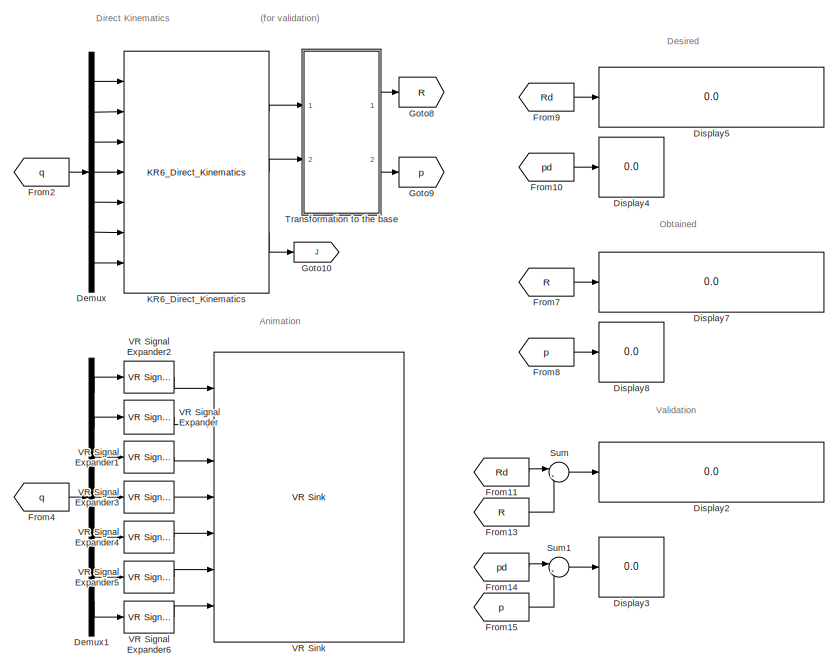
[diagram: root canvas - part 1/2, right side, full height]
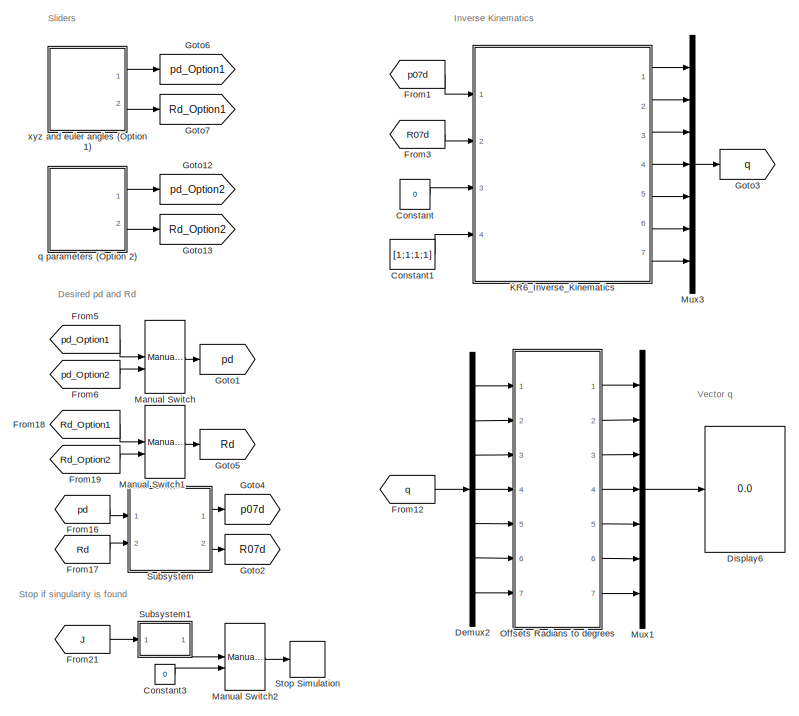
[diagram: root canvas - part 2/2, left side, full height]
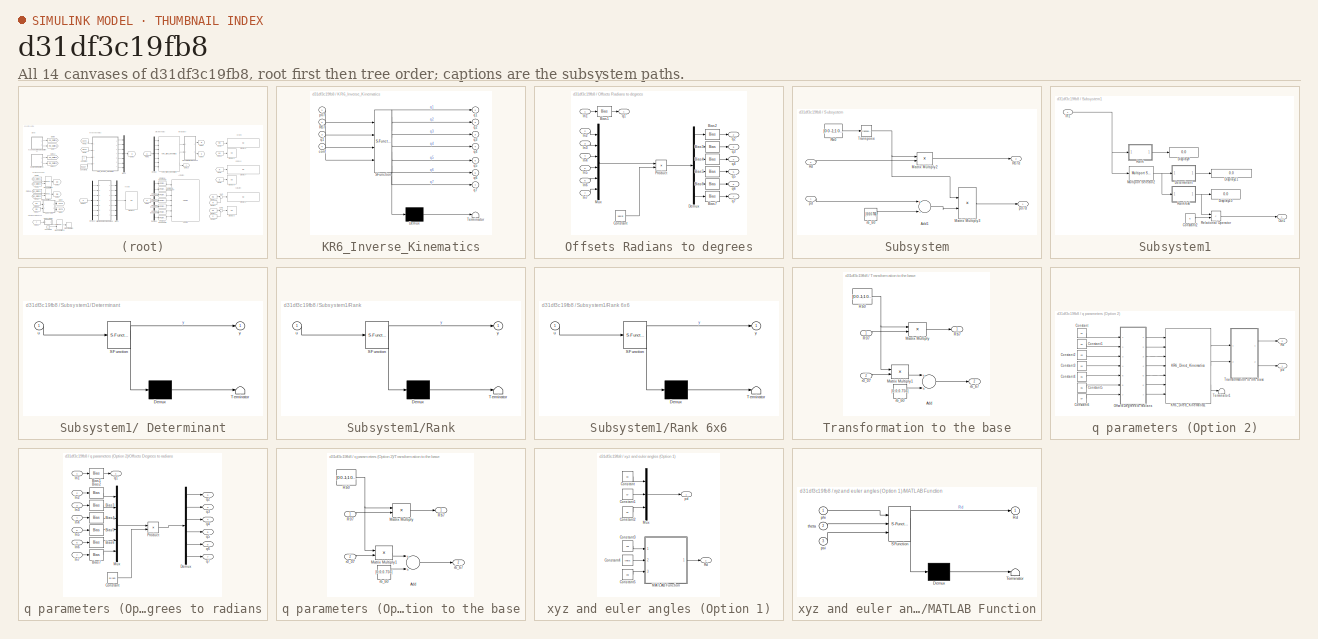
[diagram: thumbnail index - all 14 canvases of the model, root first then tree order]
MODEL slx_d31df3c19fb8
KIND model
CONFIG AbsTol = auto
CONFIG EnableMultiTasking = off
CONFIG FixedStep = auto
CONFIG MaxStep = auto
CONFIG MinStep = auto
CONFIG RelTol = 1e-3
CONFIG SampleTimeConstraint = Unconstrained
CONFIG Solver = VariableStepAuto
CONFIG SolverName = VariableStepAuto
CONFIG StartTime = 0.0
CONFIG StopTime = inf
BLOCK [Constant] Constant
  Value = 0
BLOCK [Constant] Constant1
  Value = [1;1;1;1]
BLOCK [Constant] Constant3
  Value = 0
BLOCK [Demux] Demux
  DisplayOption = bar
  Outputs = 7
  Ports = [1, 7]
BLOCK [Demux] Demux1
  DisplayOption = bar
  Outputs = 7
  Ports = [1, 7]
BLOCK [Demux] Demux2
  DisplayOption = bar
  Outputs = 7
  Ports = [1, 7]
BLOCK [Display] Display2
  Decimation = 1
  Ports = [1]
BLOCK [Display] Display3
  Decimation = 1
  Ports = [1]
BLOCK [Display] Display4
  Decimation = 1
  Ports = [1]
BLOCK [Display] Display5
  Decimation = 1
  Ports = [1]
BLOCK [Display] Display6
  Decimation = 1
  Ports = [1]
BLOCK [Display] Display7
  Decimation = 1
  Ports = [1]
BLOCK [Display] Display8
  Decimation = 1
  Ports = [1]
BLOCK [From] From1
  GotoTag = p07d
BLOCK [From] From10
  GotoTag = pd
BLOCK [From] From11
  GotoTag = Rd
BLOCK [From] From12
  GotoTag = q
BLOCK [From] From13
  GotoTag = R
BLOCK [From] From14
  GotoTag = pd
BLOCK [From] From15
  GotoTag = p
BLOCK [From] From16
  GotoTag = pd
BLOCK [From] From17
  GotoTag = Rd
BLOCK [From] From18
  GotoTag = Rd_Option1
BLOCK [From] From19
  GotoTag = Rd_Option2
BLOCK [From] From2
  GotoTag = q
BLOCK [From] From21
  GotoTag = J
BLOCK [From] From3
  GotoTag = R07d
BLOCK [From] From4
  GotoTag = q
BLOCK [From] From5
  GotoTag = pd_Option1
BLOCK [From] From6
  GotoTag = pd_Option2
BLOCK [From] From7
  GotoTag = R
BLOCK [From] From8
  GotoTag = p
BLOCK [From] From9
  GotoTag = Rd
BLOCK [Goto] Goto1
  GotoTag = pd
BLOCK [Goto] Goto10
  GotoTag = J
BLOCK [Goto] Goto12
  GotoTag = pd_Option2
BLOCK [Goto] Goto13
  GotoTag = Rd_Option2
BLOCK [Goto] Goto2
  GotoTag = R07d
BLOCK [Goto] Goto3
  GotoTag = q
BLOCK [Goto] Goto4
  GotoTag = p07d
BLOCK [Goto] Goto5
  GotoTag = Rd
BLOCK [Goto] Goto6
  GotoTag = pd_Option1
BLOCK [Goto] Goto7
  GotoTag = Rd_Option1
BLOCK [Goto] Goto8
  GotoTag = R
BLOCK [Goto] Goto9
  GotoTag = p
BLOCK [Reference] KR6_Direct_Kinematics  REF=KR6_Lib/KR6_Direct_Kinematics
  Ports = [7, 3]
  SourceBlock = KR6_Lib/KR6_Direct_Kinematics
  SourceType = SubSystem
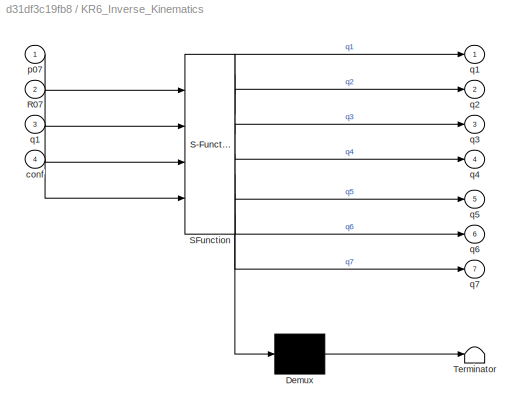
BLOCK [SubSystem] KR6_Inverse_Kinematics
  ErrorFcn = Stateflow.Translate.translate
  PermitHierarchicalResolution = ExplicitOnly
  Ports = [4, 7]
  RequestExecContextInheritance = off
  SFBlockType = MATLAB Function
  TreatAsAtomicUnit = on
BLOCK [Demux] KR6_Inverse_Kinematics/ Demux 
  Outputs = 1
  Ports = [1, 1]
BLOCK [S-Function] KR6_Inverse_Kinematics/ SFunction 
  EnableBusSupport = on
  FunctionName = sf_sfun
  PortCounts = [4 8]
  Ports = [4, 8]
  SFcnIsStateOwnerBlock = off
  SFunctionDeploymentMode = off
  Tag = Stateflow S-Function KR6_InverseKinematics 2
BLOCK [Terminator] KR6_Inverse_Kinematics/ Terminator 
BLOCK [Inport] KR6_Inverse_Kinematics/R07
  IconDisplay = Port number
  Port = 2
BLOCK [Inport] KR6_Inverse_Kinematics/conf
  IconDisplay = Port number
  Port = 4
BLOCK [Inport] KR6_Inverse_Kinematics/p07
  IconDisplay = Port number
BLOCK [Outport] KR6_Inverse_Kinematics/q1
  IconDisplay = Port number
BLOCK [Inport] KR6_Inverse_Kinematics/q1 
  IconDisplay = Port number
  Port = 3
BLOCK [Outport] KR6_Inverse_Kinematics/q2
  IconDisplay = Port number
  Port = 2
BLOCK [Outport] KR6_Inverse_Kinematics/q3
  IconDisplay = Port number
  Port = 3
BLOCK [Outport] KR6_Inverse_Kinematics/q4
  IconDisplay = Port number
  Port = 4
BLOCK [Outport] KR6_Inverse_Kinematics/q5
  IconDisplay = Port number
  Port = 5
BLOCK [Outport] KR6_Inverse_Kinematics/q6
  IconDisplay = Port number
  Port = 6
BLOCK [Outport] KR6_Inverse_Kinematics/q7
  IconDisplay = Port number
  Port = 7
BLOCK [ManualSwitch] Manual Switch
BLOCK [ManualSwitch] Manual Switch1
BLOCK [ManualSwitch] Manual Switch2
  CurrentSetting = 0
BLOCK [Mux] Mux1
  DisplayOption = bar
  Inputs = 7
  Ports = [7, 1]
BLOCK [Mux] Mux3
  DisplayOption = bar
  Inputs = 7
  Ports = [7, 1]
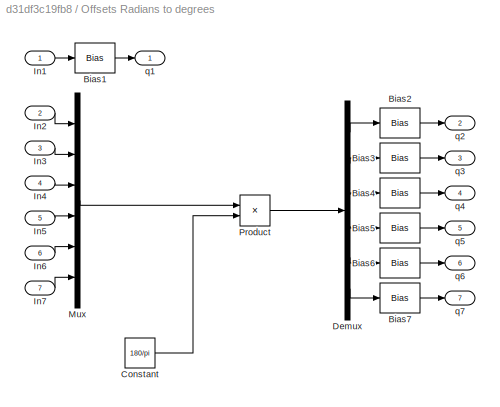
BLOCK [SubSystem] Offsets Radians to degrees
  Ports = [7, 7]
  RequestExecContextInheritance = off
BLOCK [Bias] Offsets Radians to degrees/Bias1
  SaturateOnIntegerOverflow = off
BLOCK [Bias] Offsets Radians to degrees/Bias2
  SaturateOnIntegerOverflow = off
BLOCK [Bias] Offsets Radians to degrees/Bias3
  SaturateOnIntegerOverflow = off
BLOCK [Bias] Offsets Radians to degrees/Bias4
  Bias = 90
  SaturateOnIntegerOverflow = off
BLOCK [Bias] Offsets Radians to degrees/Bias5
  SaturateOnIntegerOverflow = off
BLOCK [Bias] Offsets Radians to degrees/Bias6
  SaturateOnIntegerOverflow = off
BLOCK [Bias] Offsets Radians to degrees/Bias7
  Bias = -180
  SaturateOnIntegerOverflow = off
BLOCK [Constant] Offsets Radians to degrees/Constant
  Value = 180/pi
BLOCK [Demux] Offsets Radians to degrees/Demux
  DisplayOption = bar
  Outputs = 6
  Ports = [1, 6]
BLOCK [Inport] Offsets Radians to degrees/In1
  IconDisplay = Port number
BLOCK [Inport] Offsets Radians to degrees/In2
  IconDisplay = Port number
  Port = 2
BLOCK [Inport] Offsets Radians to degrees/In3
  IconDisplay = Port number
  Port = 3
BLOCK [Inport] Offsets Radians to degrees/In4
  IconDisplay = Port number
  Port = 4
BLOCK [Inport] Offsets Radians to degrees/In5
  IconDisplay = Port number
  Port = 5
BLOCK [Inport] Offsets Radians to degrees/In6
  IconDisplay = Port number
  Port = 6
BLOCK [Inport] Offsets Radians to degrees/In7
  IconDisplay = Port number
  Port = 7
BLOCK [Mux] Offsets Radians to degrees/Mux
  DisplayOption = bar
  Inputs = 6
  Ports = [6, 1]
BLOCK [Product] Offsets Radians to degrees/Product
  InputSameDT = off
  OutDataTypeStr = Inherit: Inherit via internal rule
  Ports = [2, 1]
  RndMeth = Floor
  SaturateOnIntegerOverflow = off
BLOCK [Outport] Offsets Radians to degrees/q1
  IconDisplay = Port number
BLOCK [Outport] Offsets Radians to degrees/q2
  IconDisplay = Port number
  Port = 2
BLOCK [Outport] Offsets Radians to degrees/q3
  IconDisplay = Port number
  Port = 3
BLOCK [Outport] Offsets Radians to degrees/q4
  IconDisplay = Port number
  Port = 4
BLOCK [Outport] Offsets Radians to degrees/q5
  IconDisplay = Port number
  Port = 5
BLOCK [Outport] Offsets Radians to degrees/q6
  IconDisplay = Port number
  Port = 6
BLOCK [Outport] Offsets Radians to degrees/q7
  IconDisplay = Port number
  Port = 7
BLOCK [Stop] Stop Simulation
BLOCK [SubSystem] Subsystem
  Ports = [2, 2]
  RequestExecContextInheritance = off
BLOCK [Sum] Subsystem/Add1
  InputSameDT = off
  Inputs = +-
  OutDataTypeStr = Inherit: Inherit via internal rule
  Ports = [2, 1]
  SaturateOnIntegerOverflow = off
BLOCK [Product] Subsystem/Matrix Multiply2
  InputSameDT = off
  Multiplication = Matrix(*)
  OutDataTypeStr = Inherit: Inherit via internal rule
  Ports = [2, 1]
  RndMeth = Floor
  SaturateOnIntegerOverflow = off
BLOCK [Product] Subsystem/Matrix Multiply3
  InputSameDT = off
  Multiplication = Matrix(*)
  OutDataTypeStr = Inherit: Inherit via internal rule
  Ports = [2, 1]
  RndMeth = Floor
  SaturateOnIntegerOverflow = off
BLOCK [Outport] Subsystem/R07d
  IconDisplay = Port number
  Port = 2
BLOCK [Constant] Subsystem/Rb0
  Value = [0 0 -1;1 0 0; 0 -1 0]
BLOCK [Inport] Subsystem/Rd
  IconDisplay = Port number
  Port = 2
BLOCK [Math] Subsystem/Transpose
  Operator = transpose
  Ports = [1, 1]
BLOCK [Outport] Subsystem/p07d
  IconDisplay = Port number
BLOCK [Inport] Subsystem/pd
  IconDisplay = Port number
BLOCK [Constant] Subsystem/rb_b0
  Value = [0;0;0.756]
BLOCK [SubSystem] Subsystem1
  Ports = [1, 1]
  RequestExecContextInheritance = off
BLOCK [SubSystem] Subsystem1/ Determinant
  ErrorFcn = Stateflow.Translate.translate
  PermitHierarchicalResolution = ExplicitOnly
  Ports = [1, 1]
  RequestExecContextInheritance = off
  SFBlockType = MATLAB Function
  TreatAsAtomicUnit = on
BLOCK [Demux] Subsystem1/ Determinant/ Demux 
  Outputs = 1
  Ports = [1, 1]
BLOCK [S-Function] Subsystem1/ Determinant/ SFunction 
  EnableBusSupport = on
  FunctionName = sf_sfun
  PortCounts = [1 2]
  Ports = [1, 2]
  SFcnIsStateOwnerBlock = off
  SFunctionDeploymentMode = off
  Tag = Stateflow S-Function KR6_InverseKinematics 3
BLOCK [Terminator] Subsystem1/ Determinant/ Terminator 
BLOCK [Inport] Subsystem1/ Determinant/u
  IconDisplay = Port number
BLOCK [Outport] Subsystem1/ Determinant/y
  IconDisplay = Port number
BLOCK [Constant] Subsystem1/Constant2
  Value = 6
BLOCK [Display] Subsystem1/Display10
  Decimation = 1
  Ports = [1]
BLOCK [Display] Subsystem1/Display11
  Decimation = 1
  Format = long
  Ports = [1]
BLOCK [Display] Subsystem1/Display9
  Decimation = 1
  Ports = [1]
BLOCK [Inport] Subsystem1/In1
  IconDisplay = Port number
BLOCK [Reference] Subsystem1/Multiport Selector2  REF=dspindex/Multiport
Selector
  Ports = [1, 1]
  SourceBlock = dspindex/Multiport\nSelector
  SourceProductBaseCode = DS
  SourceProductName = DSP System Toolbox
  SourceType = Multiport Selector
BLOCK [Outport] Subsystem1/Out1
  IconDisplay = Port number
BLOCK [SubSystem] Subsystem1/Rank
  ErrorFcn = Stateflow.Translate.translate
  PermitHierarchicalResolution = ExplicitOnly
  Ports = [1, 1]
  RequestExecContextInheritance = off
  SFBlockType = MATLAB Function
  TreatAsAtomicUnit = on
BLOCK [SubSystem] Subsystem1/Rank 6x6
  ErrorFcn = Stateflow.Translate.translate
  PermitHierarchicalResolution = ExplicitOnly
  Ports = [1, 1]
  RequestExecContextInheritance = off
  SFBlockType = MATLAB Function
  TreatAsAtomicUnit = on
BLOCK [Demux] Subsystem1/Rank 6x6/ Demux 
  Outputs = 1
  Ports = [1, 1]
BLOCK [S-Function] Subsystem1/Rank 6x6/ SFunction 
  EnableBusSupport = on
  FunctionName = sf_sfun
  PortCounts = [1 2]
  Ports = [1, 2]
  SFcnIsStateOwnerBlock = off
  SFunctionDeploymentMode = off
  Tag = Stateflow S-Function KR6_InverseKinematics 6
BLOCK [Terminator] Subsystem1/Rank 6x6/ Terminator 
BLOCK [Inport] Subsystem1/Rank 6x6/u
  IconDisplay = Port number
BLOCK [Outport] Subsystem1/Rank 6x6/y
  IconDisplay = Port number
BLOCK [Demux] Subsystem1/Rank/ Demux 
  Outputs = 1
  Ports = [1, 1]
BLOCK [S-Function] Subsystem1/Rank/ SFunction 
  EnableBusSupport = on
  FunctionName = sf_sfun
  PortCounts = [1 2]
  Ports = [1, 2]
  SFcnIsStateOwnerBlock = off
  SFunctionDeploymentMode = off
  Tag = Stateflow S-Function KR6_InverseKinematics 5
BLOCK [Terminator] Subsystem1/Rank/ Terminator 
BLOCK [Inport] Subsystem1/Rank/u
  IconDisplay = Port number
BLOCK [Outport] Subsystem1/Rank/y
  IconDisplay = Port number
BLOCK [RelationalOperator] Subsystem1/Relational Operator
  InputSameDT = off
  Operator = <
  OutDataTypeStr = boolean
  Ports = [2, 1]
  RndMeth = Simplest
BLOCK [Sum] Sum
  IconShape = round
  InputSameDT = off
  Inputs = |+-
  OutDataTypeStr = Inherit: Inherit via internal rule
  Ports = [2, 1]
  SaturateOnIntegerOverflow = off
BLOCK [Sum] Sum1
  IconShape = round
  InputSameDT = off
  Inputs = |+-
  OutDataTypeStr = Inherit: Inherit via internal rule
  Ports = [2, 1]
  SaturateOnIntegerOverflow = off
BLOCK [SubSystem] Transformation to the base
  Ports = [2, 2]
  RequestExecContextInheritance = off
BLOCK [Sum] Transformation to the base/Add
  InputSameDT = off
  OutDataTypeStr = Inherit: Inherit via internal rule
  Ports = [2, 1]
  SaturateOnIntegerOverflow = off
BLOCK [Product] Transformation to the base/Matrix Multiply
  InputSameDT = off
  Multiplication = Matrix(*)
  OutDataTypeStr = Inherit: Inherit via internal rule
  Ports = [2, 1]
  RndMeth = Floor
  SaturateOnIntegerOverflow = off
BLOCK [Product] Transformation to the base/Matrix Multiply1
  InputSameDT = off
  Multiplication = Matrix(*)
  OutDataTypeStr = Inherit: Inherit via internal rule
  Ports = [2, 1]
  RndMeth = Floor
  SaturateOnIntegerOverflow = off
BLOCK [Inport] Transformation to the base/R07
  IconDisplay = Port number
BLOCK [Constant] Transformation to the base/Rb0
  Value = [0 0 -1;1 0 0; 0 -1 0]
BLOCK [Outport] Transformation to the base/Rb7
  IconDisplay = Port number
BLOCK [Inport] Transformation to the base/r0_07
  IconDisplay = Port number
  Port = 2
BLOCK [Constant] Transformation to the base/rb_b0
  Value = [0;0;0.756]
BLOCK [Outport] Transformation to the base/rb_b7
  IconDisplay = Port number
  Port = 2
BLOCK [Reference] VR Signal Expander  REF=vrlib/VR Signal Expander
  Ports = [1, 1]
  SourceBlock = vrlib/VR Signal Expander
  SourceProductBaseCode = VR
  SourceProductName = Simulink 3D Animation
  SourceType = VR Signal Expander
BLOCK [Reference] VR Signal Expander1  REF=vrlib/VR Signal Expander
  Ports = [1, 1]
  SourceBlock = vrlib/VR Signal Expander
  SourceProductBaseCode = VR
  SourceProductName = Simulink 3D Animation
  SourceType = VR Signal Expander
BLOCK [Reference] VR Signal Expander2  REF=vrlib/VR Signal Expander
  Ports = [1, 1]
  SourceBlock = vrlib/VR Signal Expander
  SourceProductBaseCode = VR
  SourceProductName = Simulink 3D Animation
  SourceType = VR Signal Expander
BLOCK [Reference] VR Signal Expander3  REF=vrlib/VR Signal Expander
  Ports = [1, 1]
  SourceBlock = vrlib/VR Signal Expander
  SourceProductBaseCode = VR
  SourceProductName = Simulink 3D Animation
  SourceType = VR Signal Expander
BLOCK [Reference] VR Signal Expander4  REF=vrlib/VR Signal Expander
  Ports = [1, 1]
  SourceBlock = vrlib/VR Signal Expander
  SourceProductBaseCode = VR
  SourceProductName = Simulink 3D Animation
  SourceType = VR Signal Expander
BLOCK [Reference] VR Signal Expander5  REF=vrlib/VR Signal Expander
  Ports = [1, 1]
  SourceBlock = vrlib/VR Signal Expander
  SourceProductBaseCode = VR
  SourceProductName = Simulink 3D Animation
  SourceType = VR Signal Expander
BLOCK [Reference] VR Signal Expander6  REF=vrlib/VR Signal Expander
  Ports = [1, 1]
  SourceBlock = vrlib/VR Signal Expander
  SourceProductBaseCode = VR
  SourceProductName = Simulink 3D Animation
  SourceType = VR Signal Expander
BLOCK [Reference] VR Sink  REF=vrlib/VR Sink
  InstantiateOnLoad = on
  Ports = [7]
  SourceBlock = vrlib/VR Sink
  SourceProductBaseCode = VR
  SourceProductName = Simulink 3D Animation
  SourceType = Virtual Reality Sink
BLOCK [SubSystem] q parameters (Option 2)
  Ports = [0, 2]
  RequestExecContextInheritance = off
BLOCK [Constant] q parameters (Option 2)/Constant
  Value = q1
BLOCK [Constant] q parameters (Option 2)/Constant1
  Value = q2
BLOCK [Constant] q parameters (Option 2)/Constant2
  Value = q3
BLOCK [Constant] q parameters (Option 2)/Constant3
  Value = q4
BLOCK [Constant] q parameters (Option 2)/Constant4
  Value = q5
BLOCK [Constant] q parameters (Option 2)/Constant5
  Value = q6
BLOCK [Constant] q parameters (Option 2)/Constant6
  Value = q7
BLOCK [Reference] q parameters (Option 2)/KR6_Direct_Kinematics1  REF=KR6_Lib/KR6_Direct_Kinematics
  Ports = [7, 3]
  SourceBlock = KR6_Lib/KR6_Direct_Kinematics
  SourceType = SubSystem
BLOCK [SubSystem] q parameters (Option 2)/Offsets Degrees to radians
  Ports = [7, 7]
  RequestExecContextInheritance = off
BLOCK [Bias] q parameters (Option 2)/Offsets Degrees to radians/Bias1
  SaturateOnIntegerOverflow = off
BLOCK [Bias] q parameters (Option 2)/Offsets Degrees to radians/Bias2
  SaturateOnIntegerOverflow = off
BLOCK [Bias] q parameters (Option 2)/Offsets Degrees to radians/Bias3
  SaturateOnIntegerOverflow = off
BLOCK [Bias] q parameters (Option 2)/Offsets Degrees to radians/Bias4
  Bias = -90
  SaturateOnIntegerOverflow = off
BLOCK [Bias] q parameters (Option 2)/Offsets Degrees to radians/Bias5
  SaturateOnIntegerOverflow = off
BLOCK [Bias] q parameters (Option 2)/Offsets Degrees to radians/Bias6
  SaturateOnIntegerOverflow = off
BLOCK [Bias] q parameters (Option 2)/Offsets Degrees to radians/Bias7
  Bias = 180
  SaturateOnIntegerOverflow = off
BLOCK [Constant] q parameters (Option 2)/Offsets Degrees to radians/Constant
  Value = pi/180
BLOCK [Demux] q parameters (Option 2)/Offsets Degrees to radians/Demux
  DisplayOption = bar
  Outputs = 6
  Ports = [1, 6]
BLOCK [Inport] q parameters (Option 2)/Offsets Degrees to radians/In1
  IconDisplay = Port number
BLOCK [Inport] q parameters (Option 2)/Offsets Degrees to radians/In2
  IconDisplay = Port number
  Port = 2
BLOCK [Inport] q parameters (Option 2)/Offsets Degrees to radians/In3
  IconDisplay = Port number
  Port = 3
BLOCK [Inport] q parameters (Option 2)/Offsets Degrees to radians/In4
  IconDisplay = Port number
  Port = 4
BLOCK [Inport] q parameters (Option 2)/Offsets Degrees to radians/In5
  IconDisplay = Port number
  Port = 5
BLOCK [Inport] q parameters (Option 2)/Offsets Degrees to radians/In6
  IconDisplay = Port number
  Port = 6
BLOCK [Inport] q parameters (Option 2)/Offsets Degrees to radians/In7
  IconDisplay = Port number
  Port = 7
BLOCK [Mux] q parameters (Option 2)/Offsets Degrees to radians/Mux
  DisplayOption = bar
  Inputs = 6
  Ports = [6, 1]
BLOCK [Product] q parameters (Option 2)/Offsets Degrees to radians/Product
  InputSameDT = off
  OutDataTypeStr = Inherit: Inherit via internal rule
  Ports = [2, 1]
  RndMeth = Floor
  SaturateOnIntegerOverflow = off
BLOCK [Outport] q parameters (Option 2)/Offsets Degrees to radians/q1
  IconDisplay = Port number
BLOCK [Outport] q parameters (Option 2)/Offsets Degrees to radians/q2
  IconDisplay = Port number
  Port = 2
BLOCK [Outport] q parameters (Option 2)/Offsets Degrees to radians/q3
  IconDisplay = Port number
  Port = 3
BLOCK [Outport] q parameters (Option 2)/Offsets Degrees to radians/q4
  IconDisplay = Port number
  Port = 4
BLOCK [Outport] q parameters (Option 2)/Offsets Degrees to radians/q5
  IconDisplay = Port number
  Port = 5
BLOCK [Outport] q parameters (Option 2)/Offsets Degrees to radians/q6
  IconDisplay = Port number
  Port = 6
BLOCK [Outport] q parameters (Option 2)/Offsets Degrees to radians/q7
  IconDisplay = Port number
  Port = 7
BLOCK [Outport] q parameters (Option 2)/Rd
  IconDisplay = Port number
  Port = 2
BLOCK [Terminator] q parameters (Option 2)/Terminator1
BLOCK [SubSystem] q parameters (Option 2)/Transformation to the base
  Ports = [2, 2]
  RequestExecContextInheritance = off
BLOCK [Sum] q parameters (Option 2)/Transformation to the base/Add
  InputSameDT = off
  OutDataTypeStr = Inherit: Inherit via internal rule
  Ports = [2, 1]
  SaturateOnIntegerOverflow = off
BLOCK [Product] q parameters (Option 2)/Transformation to the base/Matrix Multiply
  InputSameDT = off
  Multiplication = Matrix(*)
  OutDataTypeStr = Inherit: Inherit via internal rule
  Ports = [2, 1]
  RndMeth = Floor
  SaturateOnIntegerOverflow = off
BLOCK [Product] q parameters (Option 2)/Transformation to the base/Matrix Multiply1
  InputSameDT = off
  Multiplication = Matrix(*)
  OutDataTypeStr = Inherit: Inherit via internal rule
  Ports = [2, 1]
  RndMeth = Floor
  SaturateOnIntegerOverflow = off
BLOCK [Inport] q parameters (Option 2)/Transformation to the base/R07
  IconDisplay = Port number
BLOCK [Constant] q parameters (Option 2)/Transformation to the base/Rb0
  Value = [0 0 -1;1 0 0; 0 -1 0]
BLOCK [Outport] q parameters (Option 2)/Transformation to the base/Rb7
  IconDisplay = Port number
BLOCK [Inport] q parameters (Option 2)/Transformation to the base/r0_07
  IconDisplay = Port number
  Port = 2
BLOCK [Constant] q parameters (Option 2)/Transformation to the base/rb_b0
  Value = [0;0;0.756]
BLOCK [Outport] q parameters (Option 2)/Transformation to the base/rb_b7
  IconDisplay = Port number
  Port = 2
BLOCK [Outport] q parameters (Option 2)/pd
  IconDisplay = Port number
BLOCK [SubSystem] xyz and euler angles (Option 1)
  Ports = [0, 2]
  RequestExecContextInheritance = off
BLOCK [Constant] xyz and euler angles (Option 1)/Constant
  Value = px
BLOCK [Constant] xyz and euler angles (Option 1)/Constant1
  Value = py
BLOCK [Constant] xyz and euler angles (Option 1)/Constant2
  Value = pz
BLOCK [Constant] xyz and euler angles (Option 1)/Constant3
  Value = phi
BLOCK [Constant] xyz and euler angles (Option 1)/Constant4
  Value = theta
BLOCK [Constant] xyz and euler angles (Option 1)/Constant5
  Value = psi
BLOCK [SubSystem] xyz and euler angles (Option 1)/MATLAB Function
  ErrorFcn = Stateflow.Translate.translate
  PermitHierarchicalResolution = ExplicitOnly
  Ports = [3, 1]
  RequestExecContextInheritance = off
  SFBlockType = MATLAB Function
  TreatAsAtomicUnit = on
BLOCK [Demux] xyz and euler angles (Option 1)/MATLAB Function/ Demux 
  Outputs = 1
  Ports = [1, 1]
BLOCK [S-Function] xyz and euler angles (Option 1)/MATLAB Function/ SFunction 
  EnableBusSupport = on
  FunctionName = sf_sfun
  PortCounts = [3 2]
  Ports = [3, 2]
  SFcnIsStateOwnerBlock = off
  SFunctionDeploymentMode = off
  Tag = Stateflow S-Function KR6_InverseKinematics 4
BLOCK [Terminator] xyz and euler angles (Option 1)/MATLAB Function/ Terminator 
BLOCK [Outport] xyz and euler angles (Option 1)/MATLAB Function/Rd
  IconDisplay = Port number
BLOCK [Inport] xyz and euler angles (Option 1)/MATLAB Function/phi
  IconDisplay = Port number
BLOCK [Inport] xyz and euler angles (Option 1)/MATLAB Function/psi
  IconDisplay = Port number
  Port = 3
BLOCK [Inport] xyz and euler angles (Option 1)/MATLAB Function/theta
  IconDisplay = Port number
  Port = 2
BLOCK [Mux] xyz and euler angles (Option 1)/Mux
  DisplayOption = bar
  Inputs = 3
  Ports = [3, 1]
BLOCK [Outport] xyz and euler angles (Option 1)/Rd
  IconDisplay = Port number
  Port = 2
BLOCK [Outport] xyz and euler angles (Option 1)/pd
  IconDisplay = Port number
ANNOTATION (root): Animation
ANNOTATION (root): Direct Kinematics
ANNOTATION (root): Inverse Kinematics
ANNOTATION (root): Vector q
ANNOTATION (root): (for validation)
ANNOTATION (root): Desired pd and Rd
ANNOTATION (root): Desired
ANNOTATION (root): Obtained
ANNOTATION (root): Sliders
ANNOTATION (root): Stop if singularity is found
ANNOTATION (root): Validation
LINE Constant1:1 -> KR6_Inverse_Kinematics:4
LINE Constant3:1 -> Manual Switch2:2
LINE Constant:1 -> KR6_Inverse_Kinematics:3
LINE Demux1:1 -> VR Signal Expander2:1
LINE Demux1:2 -> VR Signal Expander:1
LINE Demux1:3 -> VR Signal Expander1:1
LINE Demux1:4 -> VR Signal Expander3:1
LINE Demux1:5 -> VR Signal Expander4:1
LINE Demux1:6 -> VR Signal Expander5:1
LINE Demux1:7 -> VR Signal Expander6:1
LINE Demux2:1 -> Offsets Radians to degrees:1
LINE Demux2:2 -> Offsets Radians to degrees:2
LINE Demux2:3 -> Offsets Radians to degrees:3
LINE Demux2:4 -> Offsets Radians to degrees:4
LINE Demux2:5 -> Offsets Radians to degrees:5
LINE Demux2:6 -> Offsets Radians to degrees:6
LINE Demux2:7 -> Offsets Radians to degrees:7
LINE Demux:1 -> KR6_Direct_Kinematics:1
LINE Demux:2 -> KR6_Direct_Kinematics:2
LINE Demux:3 -> KR6_Direct_Kinematics:3
LINE Demux:4 -> KR6_Direct_Kinematics:4
LINE Demux:5 -> KR6_Direct_Kinematics:5
LINE Demux:6 -> KR6_Direct_Kinematics:6
LINE Demux:7 -> KR6_Direct_Kinematics:7
LINE From10:1 -> Display4:1
LINE From11:1 -> Sum:1
LINE From12:1 -> Demux2:1
LINE From13:1 -> Sum:2
LINE From14:1 -> Sum1:1
LINE From15:1 -> Sum1:2
LINE From16:1 -> Subsystem:1
LINE From17:1 -> Subsystem:2
LINE From18:1 -> Manual Switch1:1
LINE From19:1 -> Manual Switch1:2
LINE From1:1 -> KR6_Inverse_Kinematics:1
LINE From21:1 -> Subsystem1:1
LINE From2:1 -> Demux:1
LINE From3:1 -> KR6_Inverse_Kinematics:2
LINE From4:1 -> Demux1:1
LINE From5:1 -> Manual Switch:1
LINE From6:1 -> Manual Switch:2
LINE From7:1 -> Display7:1
LINE From8:1 -> Display8:1
LINE From9:1 -> Display5:1
LINE KR6_Direct_Kinematics:1 -> Transformation to the base:1
LINE KR6_Direct_Kinematics:2 -> Transformation to the base:2
LINE KR6_Direct_Kinematics:3 -> Goto10:1
LINE KR6_Inverse_Kinematics:1 -> Mux3:1
LINE KR6_Inverse_Kinematics:2 -> Mux3:2
LINE KR6_Inverse_Kinematics:3 -> Mux3:3
LINE KR6_Inverse_Kinematics:4 -> Mux3:4
LINE KR6_Inverse_Kinematics:5 -> Mux3:5
LINE KR6_Inverse_Kinematics:6 -> Mux3:6
LINE KR6_Inverse_Kinematics:7 -> Mux3:7
LINE Manual Switch1:1 -> Goto5:1
LINE Manual Switch2:1 -> Stop Simulation:1
LINE Manual Switch:1 -> Goto1:1
LINE Mux1:1 -> Display6:1
LINE Mux3:1 -> Goto3:1
LINE Offsets Radians to degrees/Bias1:1 -> Offsets Radians to degrees/q1:1
LINE Offsets Radians to degrees/Bias2:1 -> Offsets Radians to degrees/q2:1
LINE Offsets Radians to degrees/Bias3:1 -> Offsets Radians to degrees/q3:1
LINE Offsets Radians to degrees/Bias4:1 -> Offsets Radians to degrees/q4:1
LINE Offsets Radians to degrees/Bias5:1 -> Offsets Radians to degrees/q5:1
LINE Offsets Radians to degrees/Bias6:1 -> Offsets Radians to degrees/q6:1
LINE Offsets Radians to degrees/Bias7:1 -> Offsets Radians to degrees/q7:1
LINE Offsets Radians to degrees/Constant:1 -> Offsets Radians to degrees/Product:2
LINE Offsets Radians to degrees/Demux:1 -> Offsets Radians to degrees/Bias2:1
LINE Offsets Radians to degrees/Demux:2 -> Offsets Radians to degrees/Bias3:1
LINE Offsets Radians to degrees/Demux:3 -> Offsets Radians to degrees/Bias4:1
LINE Offsets Radians to degrees/Demux:4 -> Offsets Radians to degrees/Bias5:1
LINE Offsets Radians to degrees/Demux:5 -> Offsets Radians to degrees/Bias6:1
LINE Offsets Radians to degrees/Demux:6 -> Offsets Radians to degrees/Bias7:1
LINE Offsets Radians to degrees/In1:1 -> Offsets Radians to degrees/Bias1:1
LINE Offsets Radians to degrees/In2:1 -> Offsets Radians to degrees/Mux:1
LINE Offsets Radians to degrees/In3:1 -> Offsets Radians to degrees/Mux:2
LINE Offsets Radians to degrees/In4:1 -> Offsets Radians to degrees/Mux:3
LINE Offsets Radians to degrees/In5:1 -> Offsets Radians to degrees/Mux:4
LINE Offsets Radians to degrees/In6:1 -> Offsets Radians to degrees/Mux:5
LINE Offsets Radians to degrees/In7:1 -> Offsets Radians to degrees/Mux:6
LINE Offsets Radians to degrees/Mux:1 -> Offsets Radians to degrees/Product:1
LINE Offsets Radians to degrees/Product:1 -> Offsets Radians to degrees/Demux:1
LINE Offsets Radians to degrees:1 -> Mux1:1
LINE Offsets Radians to degrees:2 -> Mux1:2
LINE Offsets Radians to degrees:3 -> Mux1:3
LINE Offsets Radians to degrees:4 -> Mux1:4
LINE Offsets Radians to degrees:5 -> Mux1:5
LINE Offsets Radians to degrees:6 -> Mux1:6
LINE Offsets Radians to degrees:7 -> Mux1:7
LINE Subsystem/Add1:1 -> Subsystem/Matrix Multiply3:2
LINE Subsystem/Matrix Multiply2:1 -> Subsystem/R07d:1
LINE Subsystem/Matrix Multiply3:1 -> Subsystem/p07d:1
LINE Subsystem/Rb0:1 -> Subsystem/Transpose:1
LINE Subsystem/Rd:1 -> Subsystem/Matrix Multiply2:2
NET Subsystem/Transpose:1 -> Subsystem/Matrix Multiply2:1, Subsystem/Matrix Multiply3:1
LINE Subsystem/pd:1 -> Subsystem/Add1:1
LINE Subsystem/rb_b0:1 -> Subsystem/Add1:2
LINE Subsystem1/ Determinant:1 -> Subsystem1/Display11:1
LINE Subsystem1/Constant2:1 -> Subsystem1/Relational Operator:2
NET Subsystem1/In1:1 -> Subsystem1/Multiport Selector2:1, Subsystem1/Rank:1
NET Subsystem1/Multiport Selector2:1 -> Subsystem1/ Determinant:1, Subsystem1/Rank 6x6:1
NET Subsystem1/Rank 6x6:1 -> Subsystem1/Display10:1, Subsystem1/Relational Operator:1
LINE Subsystem1/Rank:1 -> Subsystem1/Display9:1
LINE Subsystem1/Relational Operator:1 -> Subsystem1/Out1:1
LINE Subsystem1:1 -> Manual Switch2:1
LINE Subsystem:1 -> Goto4:1
LINE Subsystem:2 -> Goto2:1
LINE Sum1:1 -> Display3:1
LINE Sum:1 -> Display2:1
LINE Transformation to the base/Add:1 -> Transformation to the base/rb_b7:1
LINE Transformation to the base/Matrix Multiply1:1 -> Transformation to the base/Add:1
LINE Transformation to the base/Matrix Multiply:1 -> Transformation to the base/Rb7:1
LINE Transformation to the base/R07:1 -> Transformation to the base/Matrix Multiply:2
NET Transformation to the base/Rb0:1 -> Transformation to the base/Matrix Multiply1:1, Transformation to the base/Matrix Multiply:1
LINE Transformation to the base/r0_07:1 -> Transformation to the base/Matrix Multiply1:2
LINE Transformation to the base/rb_b0:1 -> Transformation to the base/Add:2
LINE Transformation to the base:1 -> Goto8:1
LINE Transformation to the base:2 -> Goto9:1
LINE VR Signal Expander1:1 -> VR Sink:3
LINE VR Signal Expander2:1 -> VR Sink:1
LINE VR Signal Expander3:1 -> VR Sink:4
LINE VR Signal Expander4:1 -> VR Sink:5
LINE VR Signal Expander5:1 -> VR Sink:6
LINE VR Signal Expander6:1 -> VR Sink:7
LINE VR Signal Expander:1 -> VR Sink:2
LINE q parameters (Option 2)/Constant1:1 -> q parameters (Option 2)/Offsets Degrees to radians:2
LINE q parameters (Option 2)/Constant2:1 -> q parameters (Option 2)/Offsets Degrees to radians:3
LINE q parameters (Option 2)/Constant3:1 -> q parameters (Option 2)/Offsets Degrees to radians:4
LINE q parameters (Option 2)/Constant4:1 -> q parameters (Option 2)/Offsets Degrees to radians:5
LINE q parameters (Option 2)/Constant5:1 -> q parameters (Option 2)/Offsets Degrees to radians:6
LINE q parameters (Option 2)/Constant6:1 -> q parameters (Option 2)/Offsets Degrees to radians:7
LINE q parameters (Option 2)/Constant:1 -> q parameters (Option 2)/Offsets Degrees to radians:1
LINE q parameters (Option 2)/KR6_Direct_Kinematics1:1 -> q parameters (Option 2)/Transformation to the base:1
LINE q parameters (Option 2)/KR6_Direct_Kinematics1:2 -> q parameters (Option 2)/Transformation to the base:2
LINE q parameters (Option 2)/KR6_Direct_Kinematics1:3 -> q parameters (Option 2)/Terminator1:1
LINE q parameters (Option 2)/Offsets Degrees to radians/Bias1:1 -> q parameters (Option 2)/Offsets Degrees to radians/q1:1
LINE q parameters (Option 2)/Offsets Degrees to radians/Bias2:1 -> q parameters (Option 2)/Offsets Degrees to radians/Mux:1
LINE q parameters (Option 2)/Offsets Degrees to radians/Bias3:1 -> q parameters (Option 2)/Offsets Degrees to radians/Mux:2
LINE q parameters (Option 2)/Offsets Degrees to radians/Bias4:1 -> q parameters (Option 2)/Offsets Degrees to radians/Mux:3
LINE q parameters (Option 2)/Offsets Degrees to radians/Bias5:1 -> q parameters (Option 2)/Offsets Degrees to radians/Mux:4
LINE q parameters (Option 2)/Offsets Degrees to radians/Bias6:1 -> q parameters (Option 2)/Offsets Degrees to radians/Mux:5
LINE q parameters (Option 2)/Offsets Degrees to radians/Bias7:1 -> q parameters (Option 2)/Offsets Degrees to radians/Mux:6
LINE q parameters (Option 2)/Offsets Degrees to radians/Constant:1 -> q parameters (Option 2)/Offsets Degrees to radians/Product:2
LINE q parameters (Option 2)/Offsets Degrees to radians/Demux:1 -> q parameters (Option 2)/Offsets Degrees to radians/q2:1
LINE q parameters (Option 2)/Offsets Degrees to radians/Demux:2 -> q parameters (Option 2)/Offsets Degrees to radians/q3:1
LINE q parameters (Option 2)/Offsets Degrees to radians/Demux:3 -> q parameters (Option 2)/Offsets Degrees to radians/q4:1
LINE q parameters (Option 2)/Offsets Degrees to radians/Demux:4 -> q parameters (Option 2)/Offsets Degrees to radians/q5:1
LINE q parameters (Option 2)/Offsets Degrees to radians/Demux:5 -> q parameters (Option 2)/Offsets Degrees to radians/q6:1
LINE q parameters (Option 2)/Offsets Degrees to radians/Demux:6 -> q parameters (Option 2)/Offsets Degrees to radians/q7:1
LINE q parameters (Option 2)/Offsets Degrees to radians/In1:1 -> q parameters (Option 2)/Offsets Degrees to radians/Bias1:1
LINE q parameters (Option 2)/Offsets Degrees to radians/In2:1 -> q parameters (Option 2)/Offsets Degrees to radians/Bias2:1
LINE q parameters (Option 2)/Offsets Degrees to radians/In3:1 -> q parameters (Option 2)/Offsets Degrees to radians/Bias3:1
LINE q parameters (Option 2)/Offsets Degrees to radians/In4:1 -> q parameters (Option 2)/Offsets Degrees to radians/Bias4:1
LINE q parameters (Option 2)/Offsets Degrees to radians/In5:1 -> q parameters (Option 2)/Offsets Degrees to radians/Bias5:1
LINE q parameters (Option 2)/Offsets Degrees to radians/In6:1 -> q parameters (Option 2)/Offsets Degrees to radians/Bias6:1
LINE q parameters (Option 2)/Offsets Degrees to radians/In7:1 -> q parameters (Option 2)/Offsets Degrees to radians/Bias7:1
LINE q parameters (Option 2)/Offsets Degrees to radians/Mux:1 -> q parameters (Option 2)/Offsets Degrees to radians/Product:1
LINE q parameters (Option 2)/Offsets Degrees to radians/Product:1 -> q parameters (Option 2)/Offsets Degrees to radians/Demux:1
LINE q parameters (Option 2)/Offsets Degrees to radians:1 -> q parameters (Option 2)/KR6_Direct_Kinematics1:1
LINE q parameters (Option 2)/Offsets Degrees to radians:2 -> q parameters (Option 2)/KR6_Direct_Kinematics1:2
LINE q parameters (Option 2)/Offsets Degrees to radians:3 -> q parameters (Option 2)/KR6_Direct_Kinematics1:3
LINE q parameters (Option 2)/Offsets Degrees to radians:4 -> q parameters (Option 2)/KR6_Direct_Kinematics1:4
LINE q parameters (Option 2)/Offsets Degrees to radians:5 -> q parameters (Option 2)/KR6_Direct_Kinematics1:5
LINE q parameters (Option 2)/Offsets Degrees to radians:6 -> q parameters (Option 2)/KR6_Direct_Kinematics1:6
LINE q parameters (Option 2)/Offsets Degrees to radians:7 -> q parameters (Option 2)/KR6_Direct_Kinematics1:7
LINE q parameters (Option 2)/Transformation to the base/Add:1 -> q parameters (Option 2)/Transformation to the base/rb_b7:1
LINE q parameters (Option 2)/Transformation to the base/Matrix Multiply1:1 -> q parameters (Option 2)/Transformation to the base/Add:1
LINE q parameters (Option 2)/Transformation to the base/Matrix Multiply:1 -> q parameters (Option 2)/Transformation to the base/Rb7:1
LINE q parameters (Option 2)/Transformation to the base/R07:1 -> q parameters (Option 2)/Transformation to the base/Matrix Multiply:2
NET q parameters (Option 2)/Transformation to the base/Rb0:1 -> q parameters (Option 2)/Transformation to the base/Matrix Multiply1:1, q parameters (Option 2)/Transformation to the base/Matrix Multiply:1
LINE q parameters (Option 2)/Transformation to the base/r0_07:1 -> q parameters (Option 2)/Transformation to the base/Matrix Multiply1:2
LINE q parameters (Option 2)/Transformation to the base/rb_b0:1 -> q parameters (Option 2)/Transformation to the base/Add:2
LINE q parameters (Option 2)/Transformation to the base:1 -> q parameters (Option 2)/Rd:1
LINE q parameters (Option 2)/Transformation to the base:2 -> q parameters (Option 2)/pd:1
LINE q parameters (Option 2):1 -> Goto12:1
LINE q parameters (Option 2):2 -> Goto13:1
LINE xyz and euler angles (Option 1)/Constant1:1 -> xyz and euler angles (Option 1)/Mux:2
LINE xyz and euler angles (Option 1)/Constant2:1 -> xyz and euler angles (Option 1)/Mux:3
LINE xyz and euler angles (Option 1)/Constant3:1 -> xyz and euler angles (Option 1)/MATLAB Function:1
LINE xyz and euler angles (Option 1)/Constant4:1 -> xyz and euler angles (Option 1)/MATLAB Function:2
LINE xyz and euler angles (Option 1)/Constant5:1 -> xyz and euler angles (Option 1)/MATLAB Function:3
LINE xyz and euler angles (Option 1)/Constant:1 -> xyz and euler angles (Option 1)/Mux:1
LINE xyz and euler angles (Option 1)/MATLAB Function:1 -> xyz and euler angles (Option 1)/Rd:1
LINE xyz and euler angles (Option 1)/Mux:1 -> xyz and euler angles (Option 1)/pd:1
LINE xyz and euler angles (Option 1):1 -> Goto6:1
LINE xyz and euler angles (Option 1):2 -> Goto7:1
note: NET lines group one-source signal fan-out (src -> all destinations, sorted); 1:1 wires keep LINE
CHART KR6_Inverse_Kinematics states=1 transitions=1
  STATE_LABEL 'eML_blk_kernel()'
  STATE_LABEL 'SCRIPT:\nfunction [q1,q2,q3,q4,q5,q6,q7]  = KR6_Inverse_Kinematics(p07,R07,q1,conf)\n%conf: robot configuration\n%conf(1): elbow up: 1\n%         elbow down: 0\n%conf(2): wrist I: 1\n%         wrist II: 0\n%conf(3): facing forward: 1\n%         facing backward: 0\n%conf(4): q1 fixed: 1\n%         q1 not fixed: 0 (equal to position x from base reference frame)\n\nq1 = q1*conf(4) + p07(3) *(1-conf(4));\n\n\na2 =25...<+2119ch>'
CHART Subsystem1/ Determinant states=1 transitions=1
  STATE_LABEL 'eML_blk_kernel()'
  STATE_LABEL 'SCRIPT:\nfunction y = fcn(u)\n\ny = det(u);\n%determinante do jacobiano'
CHART xyz and euler angles
(Option 1)/MATLAB Function states=1 transitions=1
  STATE_LABEL 'eML_blk_kernel()'
  STATE_LABEL 'SCRIPT:\nfunction Rd = fcn(phi,theta,psi)\n\neul = pi/180*[phi theta psi];\nRd = eul2rotm(eul);\n\nend\n'
CHART Subsystem1/Rank states=1 transitions=1
  STATE_LABEL 'eML_blk_kernel()'
  STATE_LABEL 'SCRIPT:\nfunction y = fcn(u)\n\ny = rank(u);\n%rank do jacobiano'
CHART Subsystem1/Rank 6x6 states=1 transitions=1
  STATE_LABEL 'eML_blk_kernel()'
  STATE_LABEL 'SCRIPT:\nfunction y = fcn(u)\n\ny = rank(u);\n%rank do jacobiano'
